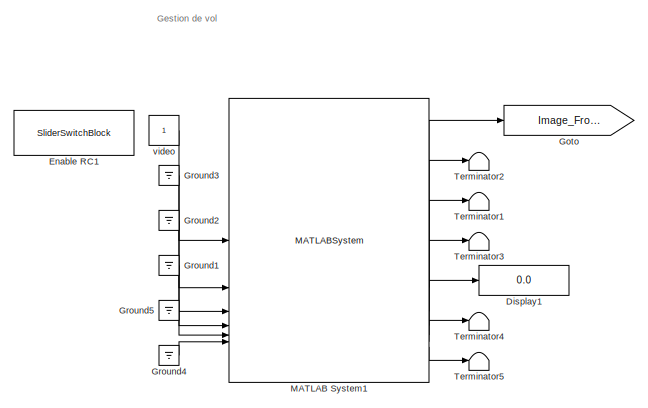
[diagram: root canvas - part 1/2, top right region]
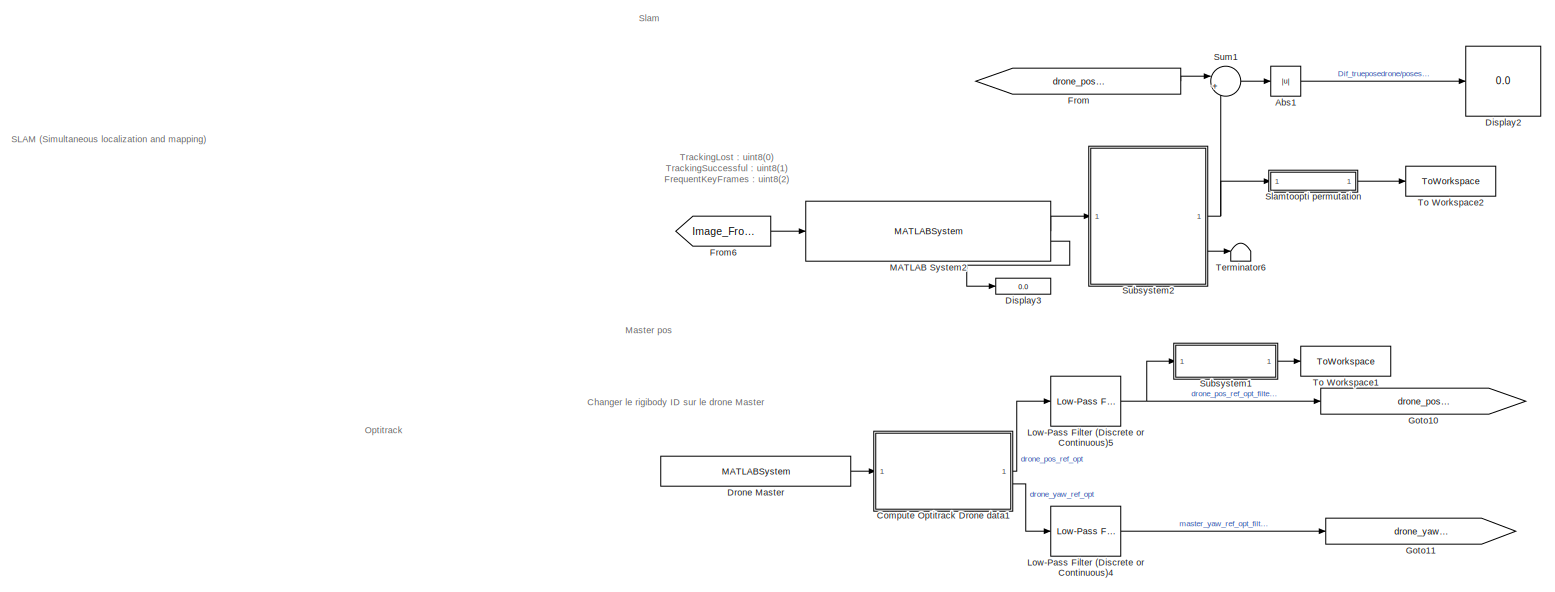
[diagram: root canvas - part 2/2, center side, full height]
MODEL slx_143c63eac440
KIND model
CONFIG AbsTol = auto
CONFIG EnableMultiTasking = off
CONFIG FixedStep = auto
CONFIG MaxStep = auto
CONFIG MinStep = auto
CONFIG RelTol = 1e-3
CONFIG SampleTimeConstraint = Unconstrained
CONFIG SolverName = VariableStepAuto
CONFIG StartTime = 0.0
CONFIG StopTime = inf
BLOCK [Abs] Abs1
  SaturateOnIntegerOverflow = off
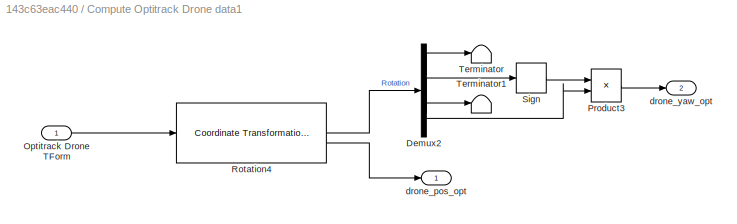
BLOCK [SubSystem] Compute Optitrack Drone data1
BLOCK [Demux] Compute Optitrack Drone data1/Demux2
BLOCK [Inport] Compute Optitrack Drone data1/Optitrack Drone TForm
BLOCK [Product] Compute Optitrack Drone data1/Product3
BLOCK [Reference] Compute Optitrack Drone data1/Rotation4  REF=robotcorelib/Coordinate Transformation Conversion
  LibrarySourceBlock = uavutilslib/Coordinate Transformation Conversion
  SourceBlock = robotcorelib/Coordinate Transformation Conversion
  SourceType = robotics.slcore.internal.block.CoordinateTransformationConversion
BLOCK [Signum] Compute Optitrack Drone data1/Sign
BLOCK [Terminator] Compute Optitrack Drone data1/Terminator
BLOCK [Terminator] Compute Optitrack Drone data1/Terminator1
BLOCK [Outport] Compute Optitrack Drone data1/drone_pos_opt
BLOCK [Outport] Compute Optitrack Drone data1/drone_yaw_opt
  Port = 2
BLOCK [Display] Display1
  Decimation = 1
BLOCK [Display] Display2
  Decimation = 1
BLOCK [Display] Display3
  Decimation = 1
BLOCK [MATLABSystem] Drone Master
  ClientIP = 10.147.125.15
  HostIP = 10.147.125.15
  MaskDisplay = disp('OptilinkSystem');\nport_label('output',1,'Drones data');
  MaskType = OptilinkSystem
  RigidbodyID = 1
  SimulateUsing = Interpreted execution
  System = OptilinkSystem
BLOCK [SliderSwitchBlock] Enable RC1
BLOCK [From] From
  GotoTag = drone_pos_master_opt_filtered
BLOCK [From] From6
  GotoTag = Image_Front
BLOCK [Goto] Goto
  GotoTag = Image_Front
BLOCK [Goto] Goto10
  GotoTag = drone_pos_master_opt_filtered
BLOCK [Goto] Goto11
  GotoTag = drone_yaw_master_opt_filtered
BLOCK [Ground] Ground1
BLOCK [Ground] Ground2
BLOCK [Ground] Ground3
BLOCK [Ground] Ground4
BLOCK [Ground] Ground5
BLOCK [Reference] Low-Pass Filter (Discrete or Continuous)4  REF=eeGeneralControl/Low-Pass Filter
(Discrete or Continuous)
  LibrarySourceBlock = ee_sl_lib/General Control/Low-Pass Filter\n(Discrete or Continuous)
  SourceBlock = eeGeneralControl/Low-Pass Filter\n(Discrete or Continuous)
  SourceType = Low-Pass Filter (Discrete or Continuous)
BLOCK [Reference] Low-Pass Filter (Discrete or Continuous)5  REF=eeGeneralControl/Low-Pass Filter
(Discrete or Continuous)
  LibrarySourceBlock = ee_sl_lib/General Control/Low-Pass Filter\n(Discrete or Continuous)
  SourceBlock = eeGeneralControl/Low-Pass Filter\n(Discrete or Continuous)
  SourceType = Low-Pass Filter (Discrete or Continuous)
BLOCK [MATLABSystem] MATLAB System1
  MaskDisplay = disp('Tello_drone_control');\nport_label('input',1,'enableVideo');\nport_label('input',2,'tkoff');\nport_label('input',3,'landing');\nport_label('input',4,'enableRC');\nport_label('input',5,'cmdVideoDirection');\nport_label('input',6,'rcspeeds');\nport_label('output',1,'imageFront');\nport_label('output',2,'imageDown');\nport_label('output',3,'Eulerangles');\nport_label('output',4,'speedXYZ');\nport_label('o...<+117ch>
  MaskType = Tello_drone_control
  SimulateUsing = Interpreted execution
  System = Tello_drone_control
  droneIP = 127.0.0.1
BLOCK [MATLABSystem] MATLAB System2
  FocalLength = [ 894, 896]
  ImageSize = [ 720, 960 ]
  MaskDisplay = disp('MonoVisualSLAMSystem');\nport_label('input',1,'Image');\nport_label('output',1,'Camera Pose');\nport_label('output',2,'Tracking Lost');
  MaskType = MonoVisualSLAMSystem
  PrincipalPoint = [490,355.6]
  SimulateUsing = Code generation
  System = MonoVisualSLAMSystem
  numPoints = 800
  numSkipFrames = 15
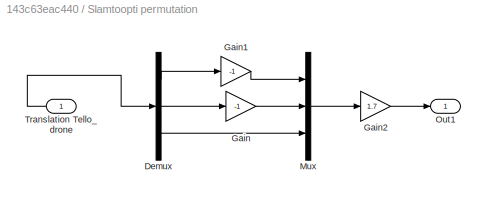
BLOCK [SubSystem] Slamtoopti permutation
BLOCK [Demux] Slamtoopti permutation/Demux
  Outputs = 3
BLOCK [Gain] Slamtoopti permutation/Gain
  Gain = -1
BLOCK [Gain] Slamtoopti permutation/Gain1
  Gain = -1
BLOCK [Gain] Slamtoopti permutation/Gain2
  Gain = 1.7
BLOCK [Mux] Slamtoopti permutation/Mux
  DisplayOption = bar
  Inputs = 3
BLOCK [Outport] Slamtoopti permutation/Out1
BLOCK [Inport] Slamtoopti permutation/Translation Tello_drone
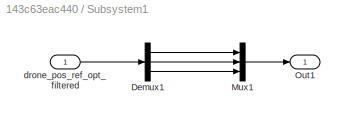
BLOCK [SubSystem] Subsystem1
BLOCK [Demux] Subsystem1/Demux1
  Outputs = 3
BLOCK [Mux] Subsystem1/Mux1
  DisplayOption = bar
  Inputs = 3
BLOCK [Outport] Subsystem1/Out1
BLOCK [Inport] Subsystem1/drone_pos_ref_opt_filtered
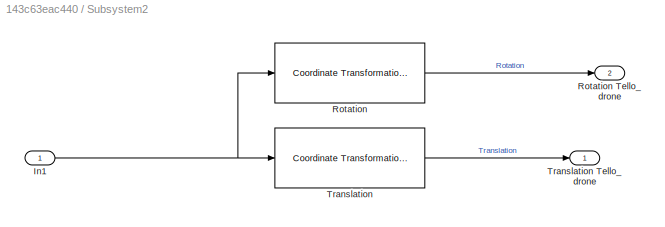
BLOCK [SubSystem] Subsystem2
BLOCK [Inport] Subsystem2/In1
BLOCK [Reference] Subsystem2/Rotation  REF=robotcorelib/Coordinate Transformation Conversion
  LibrarySourceBlock = uavutilslib/Coordinate Transformation Conversion
  SourceBlock = robotcorelib/Coordinate Transformation Conversion
  SourceType = robotics.slcore.internal.block.CoordinateTransformationConversion
BLOCK [Outport] Subsystem2/Rotation Tello_drone
  Port = 2
BLOCK [Reference] Subsystem2/Translation  REF=robotcorelib/Coordinate Transformation Conversion
  LibrarySourceBlock = uavutilslib/Coordinate Transformation Conversion
  SourceBlock = robotcorelib/Coordinate Transformation Conversion
  SourceType = robotics.slcore.internal.block.CoordinateTransformationConversion
BLOCK [Outport] Subsystem2/Translation Tello_drone
BLOCK [Sum] Sum1
  Inputs = |+-
BLOCK [Terminator] Terminator1
BLOCK [Terminator] Terminator2
BLOCK [Terminator] Terminator3
BLOCK [Terminator] Terminator4
BLOCK [Terminator] Terminator5
BLOCK [Terminator] Terminator6
BLOCK [ToWorkspace] To Workspace1
  FixptAsFi = on
  MaxDataPoints = inf
  SampleTime = -1
  VariableName = groundtruthopti
BLOCK [ToWorkspace] To Workspace2
  FixptAsFi = on
  MaxDataPoints = inf
  SampleTime = -1
  VariableName = droneSlamPositions
BLOCK [Constant] video
ANNOTATION (root): Gestion de vol
ANNOTATION (root): Optitrack
ANNOTATION (root): SLAM (Simultaneous localization and mapping)
ANNOTATION (root): Changer le rigibody ID sur le drone Master
ANNOTATION (root): Master pos
ANNOTATION (root): Slam
ANNOTATION (root): TrackingLost : uint8(0) TrackingSuccessful : uint8(1) FrequentKeyFrames : uint8(2)
LINE Abs1:1 -> Display2:1
LINE Compute Optitrack Drone data1/Demux2:1 -> Compute Optitrack Drone data1/Terminator:1
LINE Compute Optitrack Drone data1/Demux2:2 -> Compute Optitrack Drone data1/Sign:1
LINE Compute Optitrack Drone data1/Demux2:3 -> Compute Optitrack Drone data1/Terminator1:1
LINE Compute Optitrack Drone data1/Demux2:4 -> Compute Optitrack Drone data1/Product3:2
LINE Compute Optitrack Drone data1/Optitrack Drone TForm:1 -> Compute Optitrack Drone data1/Rotation4:1
LINE Compute Optitrack Drone data1/Product3:1 -> Compute Optitrack Drone data1/drone_yaw_opt:1
LINE Compute Optitrack Drone data1/Rotation4:1 -> Compute Optitrack Drone data1/Demux2:1
LINE Compute Optitrack Drone data1/Rotation4:2 -> Compute Optitrack Drone data1/drone_pos_opt:1
LINE Compute Optitrack Drone data1/Sign:1 -> Compute Optitrack Drone data1/Product3:1
LINE Compute Optitrack Drone data1:1 -> Low-Pass Filter (Discrete or Continuous)5:1
LINE Compute Optitrack Drone data1:2 -> Low-Pass Filter (Discrete or Continuous)4:1
LINE Drone Master:1 -> Compute Optitrack Drone data1:1
LINE From6:1 -> MATLAB System2:1
LINE From:1 -> Sum1:1
LINE Ground1:1 -> MATLAB System1:4
LINE Ground2:1 -> MATLAB System1:3
LINE Ground3:1 -> MATLAB System1:2
LINE Ground4:1 -> MATLAB System1:6
LINE Ground5:1 -> MATLAB System1:5
LINE Low-Pass Filter (Discrete or Continuous)4:1 -> Goto11:1
NET Low-Pass Filter (Discrete or Continuous)5:1 -> Goto10:1, Subsystem1:1
LINE MATLAB System1:1 -> Goto:1
LINE MATLAB System1:2 -> Terminator2:1
LINE MATLAB System1:3 -> Terminator1:1
LINE MATLAB System1:4 -> Terminator3:1
LINE MATLAB System1:5 -> Display1:1
LINE MATLAB System1:6 -> Terminator4:1
LINE MATLAB System1:7 -> Terminator5:1
LINE MATLAB System2:1 -> Subsystem2:1
LINE MATLAB System2:2 -> Display3:1
LINE Slamtoopti permutation/Demux:1 -> Slamtoopti permutation/Gain1:1
LINE Slamtoopti permutation/Demux:2 -> Slamtoopti permutation/Gain:1
LINE Slamtoopti permutation/Demux:3 -> Slamtoopti permutation/Mux:3
LINE Slamtoopti permutation/Gain1:1 -> Slamtoopti permutation/Mux:1
LINE Slamtoopti permutation/Gain2:1 -> Slamtoopti permutation/Out1:1
LINE Slamtoopti permutation/Gain:1 -> Slamtoopti permutation/Mux:2
LINE Slamtoopti permutation/Mux:1 -> Slamtoopti permutation/Gain2:1
LINE Slamtoopti permutation/Translation Tello_drone:1 -> Slamtoopti permutation/Demux:1
LINE Slamtoopti permutation:1 -> To Workspace2:1
LINE Subsystem1/Demux1:1 -> Subsystem1/Mux1:1
LINE Subsystem1/Demux1:2 -> Subsystem1/Mux1:2
LINE Subsystem1/Demux1:3 -> Subsystem1/Mux1:3
LINE Subsystem1/Mux1:1 -> Subsystem1/Out1:1
LINE Subsystem1/drone_pos_ref_opt_filtered:1 -> Subsystem1/Demux1:1
LINE Subsystem1:1 -> To Workspace1:1
NET Subsystem2/In1:1 -> Subsystem2/Rotation:1, Subsystem2/Translation:1
LINE Subsystem2/Rotation:1 -> Subsystem2/Rotation Tello_drone:1
LINE Subsystem2/Translation:1 -> Subsystem2/Translation Tello_drone:1
NET Subsystem2:1 -> Slamtoopti permutation:1, Sum1:2
LINE Subsystem2:2 -> Terminator6:1
LINE Sum1:1 -> Abs1:1
LINE video:1 -> MATLAB System1:1
note: NET lines group one-source signal fan-out (src -> all destinations, sorted); 1:1 wires keep LINE
